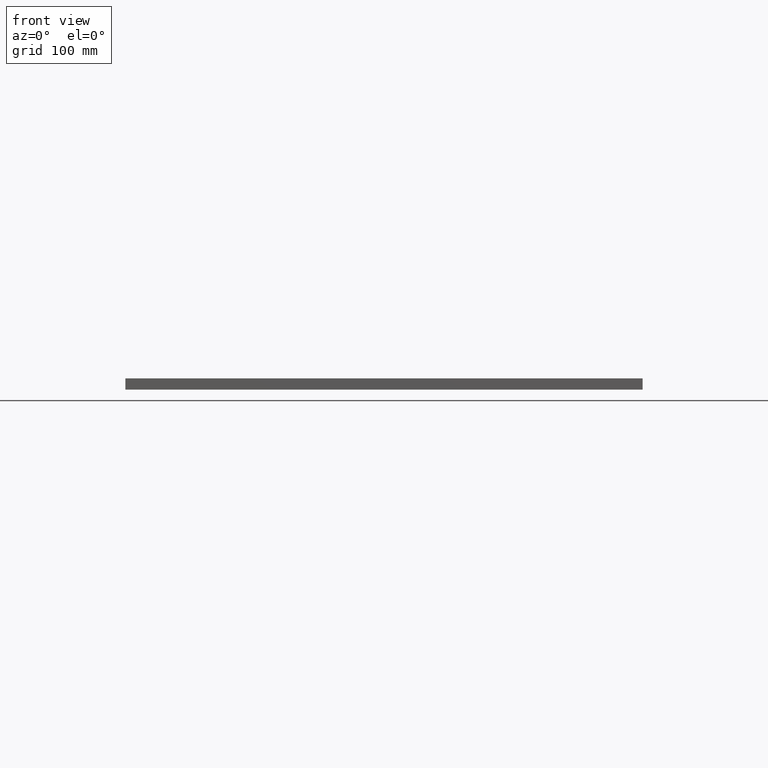
[diagram: clean part render]
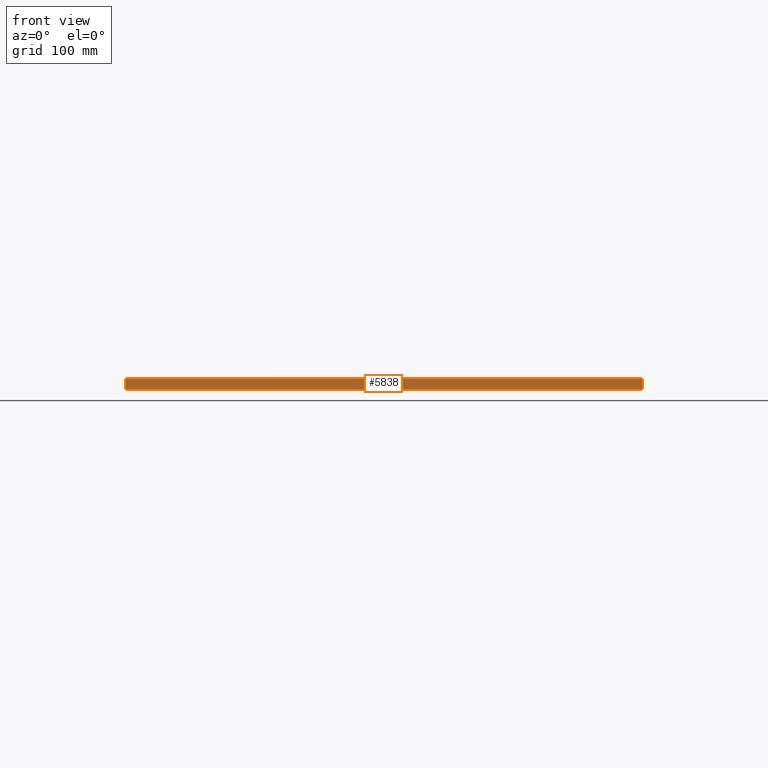
[diagram: same view with one face highlighted and labeled with its STEP entity id]
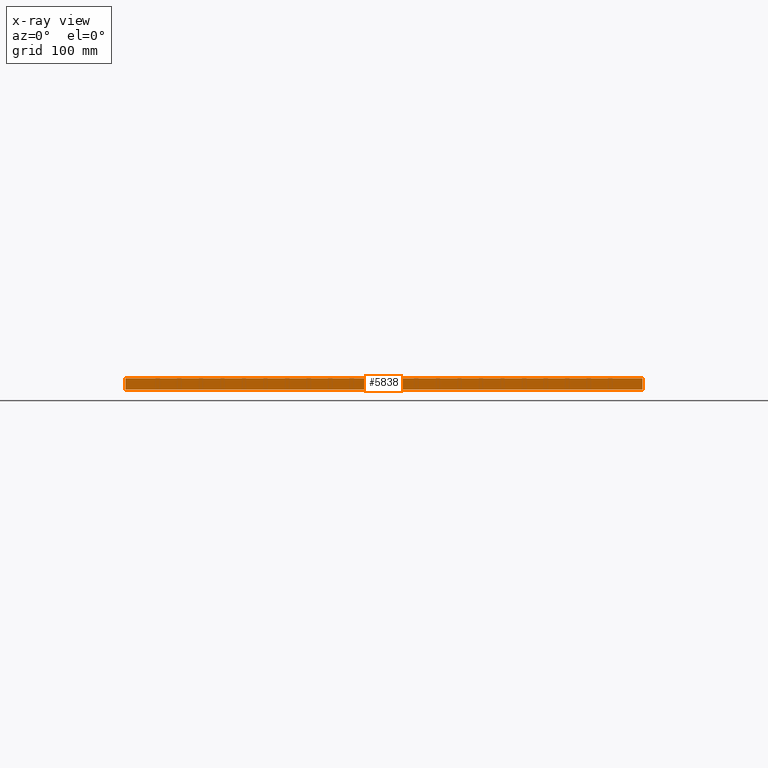
[diagram: x-ray of the same camera — body ghosted, the highlighted face saturated]
A machine part, front view. The second image highlights one B-rep face of the part: STEP entity #5838.
The next image is the same camera in x-ray: the body ghosted, the highlighted face saturated — about 0% of this face is hidden behind the body in this view.
In plain terms, the highlighted planar face has unit normal (0, 1, 0).
Its self-contained STEP definition (entity closure, byte-faithful):
#47 = CARTESIAN_POINT ( 'NONE',  ( -300.0000000000000600, -299.9999999999999400, 0.0000000000000000000 ) ) ;
#156 = CARTESIAN_POINT ( 'NONE',  ( 300.0000000000000600, -299.9999999999999400, 13.00000000000000000 ) ) ;
#203 = VERTEX_POINT ( 'NONE', #47 ) ;
#2829 = CARTESIAN_POINT ( 'NONE',  ( -300.0000000000000600, -299.9999999999999400, 13.00000000000000000 ) ) ;
#3649 = ORIENTED_EDGE ( 'NONE', *, *, #7080, .F. ) ;
#5838 = ADVANCED_FACE ( 'NONE', ( #21127 ), #23830, .F. ) ;
#7080 = EDGE_CURVE ( 'NONE', #34470, #34581, #31478, .T. ) ;
#8608 = ORIENTED_EDGE ( 'NONE', *, *, #23142, .T. ) ;
#9338 = EDGE_CURVE ( 'NONE', #34470, #203, #23067, .T. ) ;
#10005 = DIRECTION ( 'NONE',  ( 0.0000000000000000000, -0.0000000000000000000, 1.000000000000000000 ) ) ;
#14321 = LINE ( 'NONE', #26817, #28150 ) ;
#14846 = VECTOR ( 'NONE', #20201, 1000.000000000000000 ) ;
#16326 = CARTESIAN_POINT ( 'NONE',  ( -300.0000000000000600, -299.9999999999999400, 13.00000000000000000 ) ) ;
#16975 = CARTESIAN_POINT ( 'NONE',  ( 300.0000000000000600, -299.9999999999999400, 13.00000000000000000 ) ) ;
#17429 = CARTESIAN_POINT ( 'NONE',  ( -300.0000000000000600, -299.9999999999999400, 13.00000000000000000 ) ) ;
#19769 = VERTEX_POINT ( 'NONE', #30302 ) ;
#20201 = DIRECTION ( 'NONE',  ( -0.0000000000000000000, -0.0000000000000000000, -1.000000000000000000 ) ) ;
#21025 = CARTESIAN_POINT ( 'NONE',  ( -300.0000000000000600, -299.9999999999999400, 13.00000000000000000 ) ) ;
#21127 = FACE_OUTER_BOUND ( 'NONE', #22417, .T. ) ;
#21522 = EDGE_CURVE ( 'NONE', #34581, #19769, #30201, .T. ) ;
#21950 = AXIS2_PLACEMENT_3D ( 'NONE', #21025, #26589, #10005 ) ;
#21956 = VECTOR ( 'NONE', #28102, 1000.000000000000000 ) ;
#22417 = EDGE_LOOP ( 'NONE', ( #8608, #23575, #3649, #25310 ) ) ;
#23067 = LINE ( 'NONE', #17429, #14846 ) ;
#23142 = EDGE_CURVE ( 'NONE', #203, #19769, #14321, .T. ) ;
#23575 = ORIENTED_EDGE ( 'NONE', *, *, #21522, .F. ) ;
#23830 = PLANE ( 'NONE',  #21950 ) ;
#24895 = DIRECTION ( 'NONE',  ( 1.000000000000000000, 0.0000000000000000000, 0.0000000000000000000 ) ) ;
#24947 = VECTOR ( 'NONE', #24895, 1000.000000000000000 ) ;
#25310 = ORIENTED_EDGE ( 'NONE', *, *, #9338, .T. ) ;
#26589 = DIRECTION ( 'NONE',  ( 0.0000000000000000000, 1.000000000000000000, 0.0000000000000000000 ) ) ;
#26817 = CARTESIAN_POINT ( 'NONE',  ( -300.0000000000000600, -299.9999999999999400, 0.0000000000000000000 ) ) ;
#28102 = DIRECTION ( 'NONE',  ( -0.0000000000000000000, -0.0000000000000000000, -1.000000000000000000 ) ) ;
#28150 = VECTOR ( 'NONE', #29618, 1000.000000000000000 ) ;
#29618 = DIRECTION ( 'NONE',  ( 1.000000000000000000, 0.0000000000000000000, 0.0000000000000000000 ) ) ;
#30201 = LINE ( 'NONE', #16975, #21956 ) ;
#30302 = CARTESIAN_POINT ( 'NONE',  ( 300.0000000000000600, -299.9999999999999400, 0.0000000000000000000 ) ) ;
#31478 = LINE ( 'NONE', #2829, #24947 ) ;
#34470 = VERTEX_POINT ( 'NONE', #16326 ) ;
#34581 = VERTEX_POINT ( 'NONE', #156 ) ;